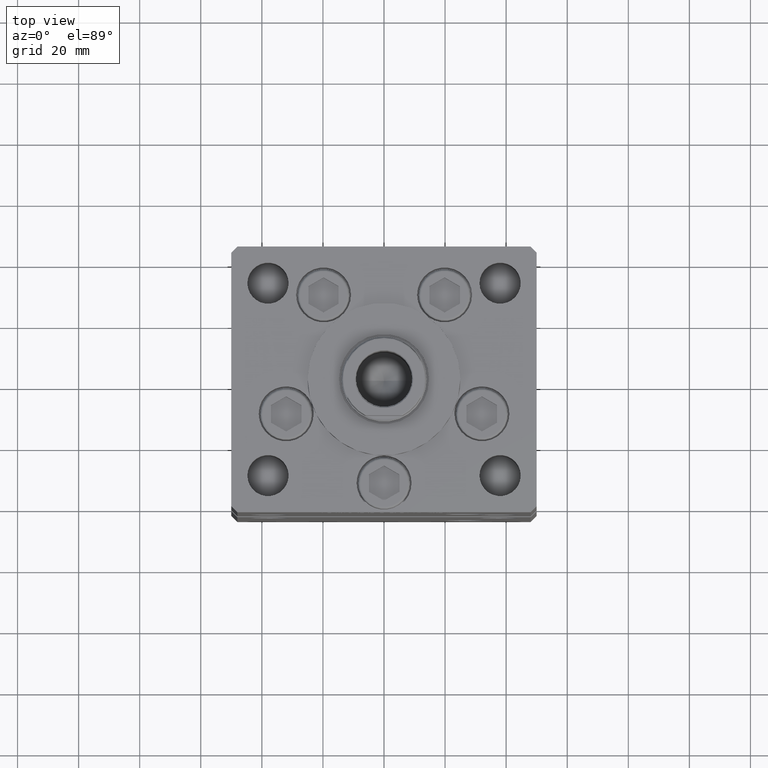
[diagram: clean part render]
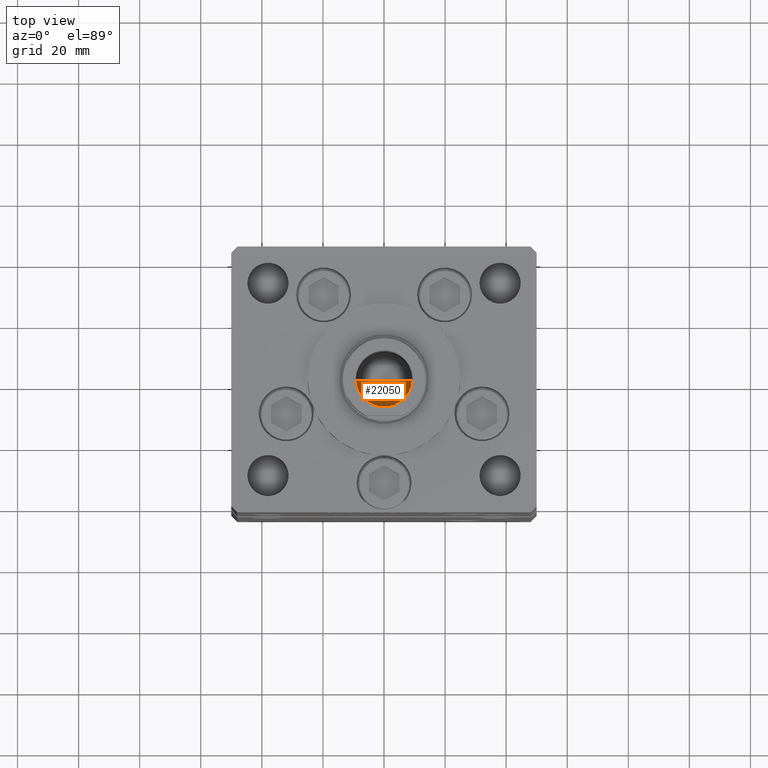
[diagram: same view with one face highlighted and labeled with its STEP entity id]
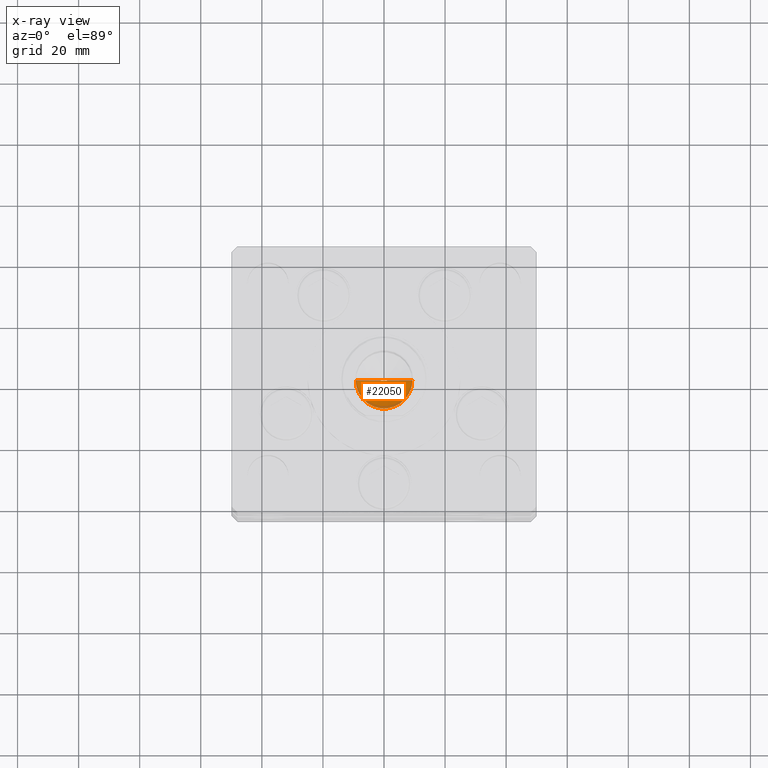
[diagram: x-ray of the same camera — body ghosted, the highlighted face saturated]
A machine part, top view. The second image highlights one B-rep face of the part: STEP entity #22050.
The next image is the same camera in x-ray: the body ghosted, the highlighted face saturated — about 9% of this face is hidden behind the body in this view.
In plain terms, the highlighted conical surface has half-angle 59 deg.
Its self-contained STEP definition (entity closure, byte-faithful):
#922 = CARTESIAN_POINT ( 'NONE',  ( 9.249999999999994671, 0.000000000000000000, 130.2500000000000000 ) ) ;
#5506 = LINE ( 'NONE', #21881, #20838 ) ;
#7400 = CIRCLE ( 'NONE', #46023, 9.249999999999994671 ) ;
#7938 = VECTOR ( 'NONE', #41255, 1000.000000000000000 ) ;
#8909 = VERTEX_POINT ( 'NONE', #44929 ) ;
#9367 = DIRECTION ( 'NONE',  ( -0.000000000000000000, -0.000000000000000000, 1.000000000000000000 ) ) ;
#12471 = EDGE_CURVE ( 'NONE', #27952, #33837, #5506, .T. ) ;
#13005 = ORIENTED_EDGE ( 'NONE', *, *, #12471, .T. ) ;
#15353 = DIRECTION ( 'NONE',  ( 1.000000000000000000, 0.000000000000000000, 0.000000000000000000 ) ) ;
#16693 = ORIENTED_EDGE ( 'NONE', *, *, #24427, .F. ) ;
#18584 = CARTESIAN_POINT ( 'NONE',  ( 0.000000000000000000, 0.000000000000000000, 130.2500000000000000 ) ) ;
#20802 = LINE ( 'NONE', #922, #7938 ) ;
#20838 = VECTOR ( 'NONE', #50641, 1000.000000000000000 ) ;
#21881 = CARTESIAN_POINT ( 'NONE',  ( -9.249999999999994671, 1.132798289211300909E-15, 130.2500000000000000 ) ) ;
#22050 = ADVANCED_FACE ( 'NONE', ( #38396 ), #22813, .F. ) ;
#22813 = CONICAL_SURFACE ( 'NONE', #52864, 9.249999999999994671, 1.029744258676653423 ) ;
#23961 = DIRECTION ( 'NONE',  ( -0.000000000000000000, -0.000000000000000000, 1.000000000000000000 ) ) ;
#24427 = EDGE_CURVE ( 'NONE', #27952, #8909, #20802, .T. ) ;
#27952 = VERTEX_POINT ( 'NONE', #29894 ) ;
#29894 = CARTESIAN_POINT ( 'NONE',  ( -1.046994375366439223E-14, 0.000000000000000000, 124.6920392739950643 ) ) ;
#33837 = VERTEX_POINT ( 'NONE', #35195 ) ;
#35046 = EDGE_CURVE ( 'NONE', #33837, #8909, #7400, .T. ) ;
#35195 = CARTESIAN_POINT ( 'NONE',  ( -9.249999999999994671, 1.132798289211300909E-15, 130.2500000000000000 ) ) ;
#38396 = FACE_OUTER_BOUND ( 'NONE', #46273, .T. ) ;
#38663 = DIRECTION ( 'NONE',  ( 1.000000000000000000, 0.000000000000000000, 0.000000000000000000 ) ) ;
#41255 = DIRECTION ( 'NONE',  ( 0.8571673007021117785, 0.000000000000000000, 0.5150380749100550437 ) ) ;
#44929 = CARTESIAN_POINT ( 'NONE',  ( 9.249999999999994671, 0.000000000000000000, 130.2500000000000000 ) ) ;
#45481 = ORIENTED_EDGE ( 'NONE', *, *, #35046, .T. ) ;
#45953 = CARTESIAN_POINT ( 'NONE',  ( 0.000000000000000000, 0.000000000000000000, 130.2500000000000000 ) ) ;
#46023 = AXIS2_PLACEMENT_3D ( 'NONE', #18584, #23961, #15353 ) ;
#46273 = EDGE_LOOP ( 'NONE', ( #16693, #13005, #45481 ) ) ;
#50641 = DIRECTION ( 'NONE',  ( -0.8571673007021117785, 1.049727191138617956E-16, 0.5150380749100550437 ) ) ;
#52864 = AXIS2_PLACEMENT_3D ( 'NONE', #45953, #9367, #38663 ) ;